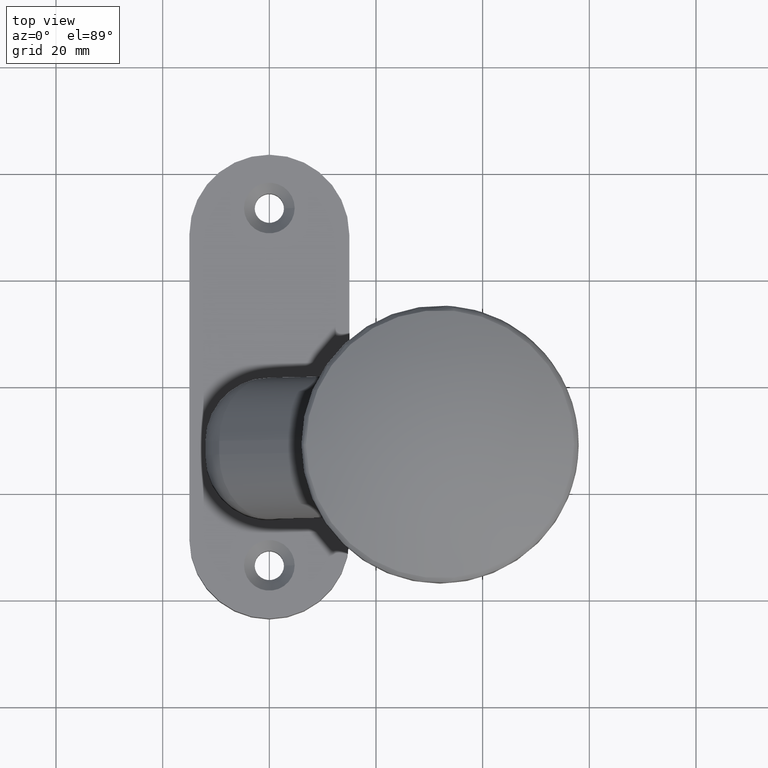
[diagram: clean part render]
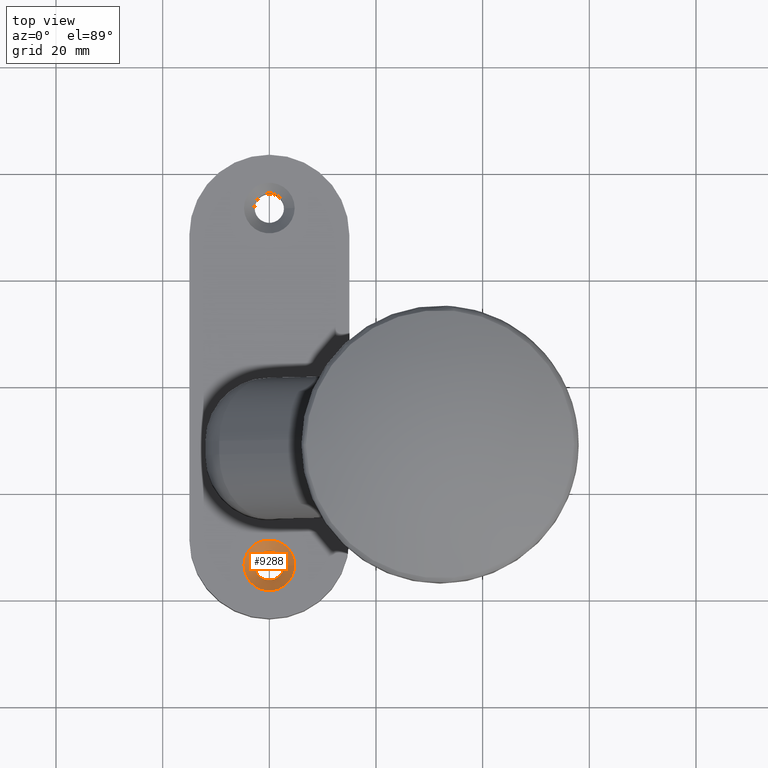
[diagram: same view with one face highlighted and labeled with its STEP entity id]
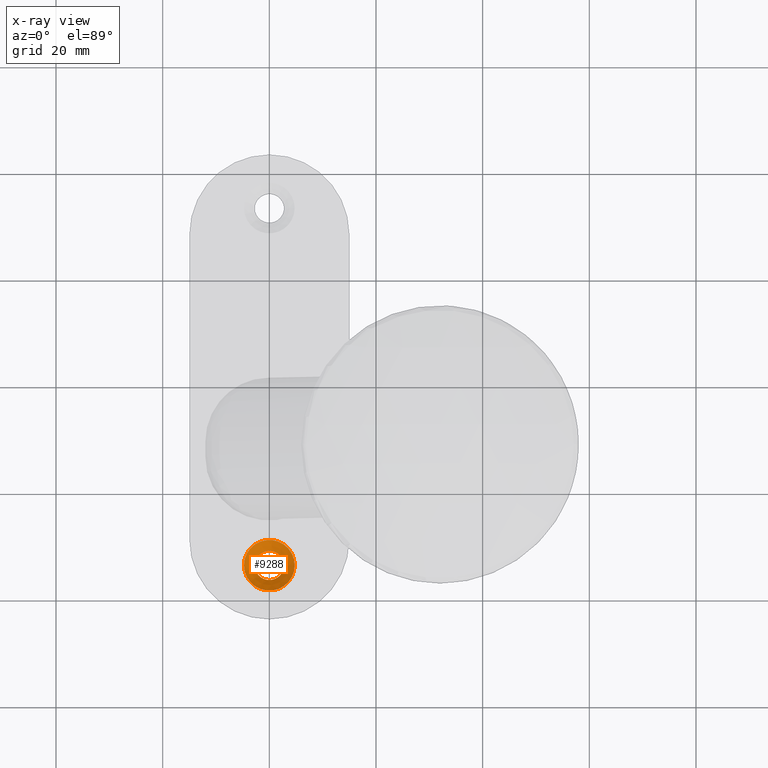
[diagram: x-ray of the same camera — body ghosted, the highlighted face saturated]
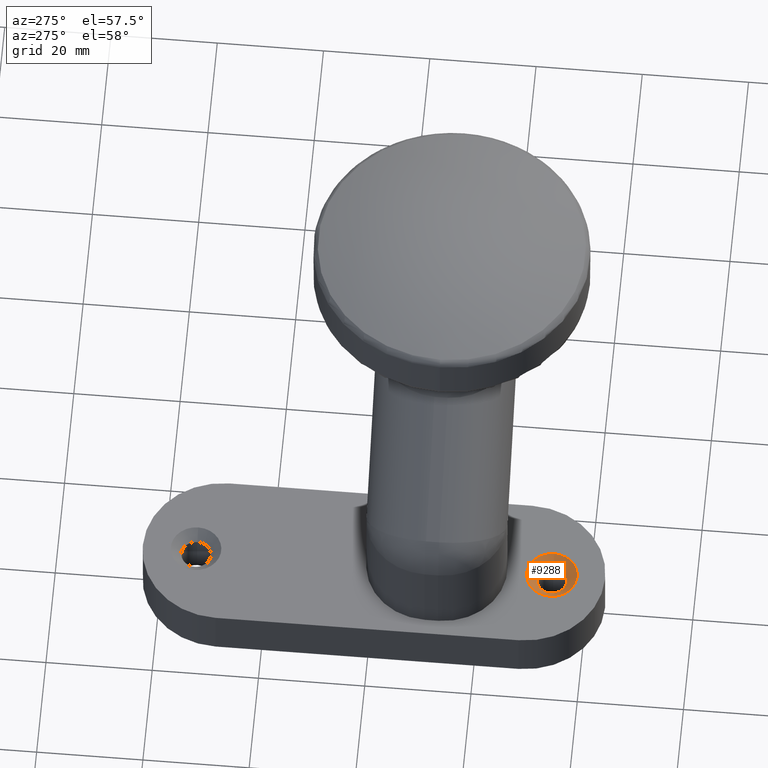
[diagram: same view with one face highlighted and labeled with its STEP entity id]
A machine part, top view. The second image highlights one B-rep face of the part: STEP entity #9288.
The next image is the same camera in x-ray: the body ghosted, the highlighted face saturated — about 0% of this face is hidden behind the body in this view.
A second angle (auxiliary view) of the same face is appended — the face is thin or edge-on in the first view.
In plain terms, the highlighted conical surface has half-angle 45 deg.
Its self-contained STEP definition (entity closure, byte-faithful):
#1771 = FACE_BOUND ( 'NONE', #14971, .T. ) ;
#1883 = CARTESIAN_POINT ( 'NONE',  ( 4.750000000000031974, -33.50000000000000000, 5.000000000000000000 ) ) ;
#2076 = DIRECTION ( 'NONE',  ( 0.000000000000000000, 0.000000000000000000, 1.000000000000000000 ) ) ;
#2746 = VERTEX_POINT ( 'NONE', #1883 ) ;
#3846 = FACE_OUTER_BOUND ( 'NONE', #5504, .T. ) ;
#3919 = DIRECTION ( 'NONE',  ( 0.000000000000000000, -0.000000000000000000, -1.000000000000000000 ) ) ;
#4655 = ORIENTED_EDGE ( 'NONE', *, *, #9525, .F. ) ;
#5504 = EDGE_LOOP ( 'NONE', ( #11513 ) ) ;
#5897 = AXIS2_PLACEMENT_3D ( 'NONE', #7936, #2076, #6702 ) ;
#6433 = AXIS2_PLACEMENT_3D ( 'NONE', #12046, #14684, #15692 ) ;
#6702 = DIRECTION ( 'NONE',  ( 1.000000000000000000, 0.000000000000000000, 0.000000000000000000 ) ) ;
#7134 = CIRCLE ( 'NONE', #15600, 4.750000000000031974 ) ;
#7567 = CARTESIAN_POINT ( 'NONE',  ( 0.000000000000000000, -33.50000000000000000, 5.000000000000000000 ) ) ;
#7936 = CARTESIAN_POINT ( 'NONE',  ( 0.000000000000000000, -33.50000000000000000, 2.999999999999972911 ) ) ;
#8100 = CARTESIAN_POINT ( 'NONE',  ( 2.750000000000000444, -33.50000000000000000, 2.999999999999972911 ) ) ;
#8837 = DIRECTION ( 'NONE',  ( 1.000000000000000000, 0.000000000000000000, 0.000000000000000000 ) ) ;
#9288 = ADVANCED_FACE ( 'NONE', ( #3846, #1771 ), #12663, .F. ) ;
#9525 = EDGE_CURVE ( 'NONE', #10936, #10936, #9951, .T. ) ;
#9951 = CIRCLE ( 'NONE', #5897, 2.750000000000000444 ) ;
#10936 = VERTEX_POINT ( 'NONE', #8100 ) ;
#11513 = ORIENTED_EDGE ( 'NONE', *, *, #15063, .F. ) ;
#12046 = CARTESIAN_POINT ( 'NONE',  ( 0.000000000000000000, -33.50000000000000000, 2.999999999999972911 ) ) ;
#12663 = CONICAL_SURFACE ( 'NONE', #6433, 2.750000000000000444, 0.7853981633974492782 ) ;
#14684 = DIRECTION ( 'NONE',  ( 0.000000000000000000, 0.000000000000000000, 1.000000000000000000 ) ) ;
#14971 = EDGE_LOOP ( 'NONE', ( #4655 ) ) ;
#15063 = EDGE_CURVE ( 'NONE', #2746, #2746, #7134, .T. ) ;
#15600 = AXIS2_PLACEMENT_3D ( 'NONE', #7567, #3919, #8837 ) ;
#15692 = DIRECTION ( 'NONE',  ( 1.000000000000000000, 0.000000000000000000, 0.000000000000000000 ) ) ;